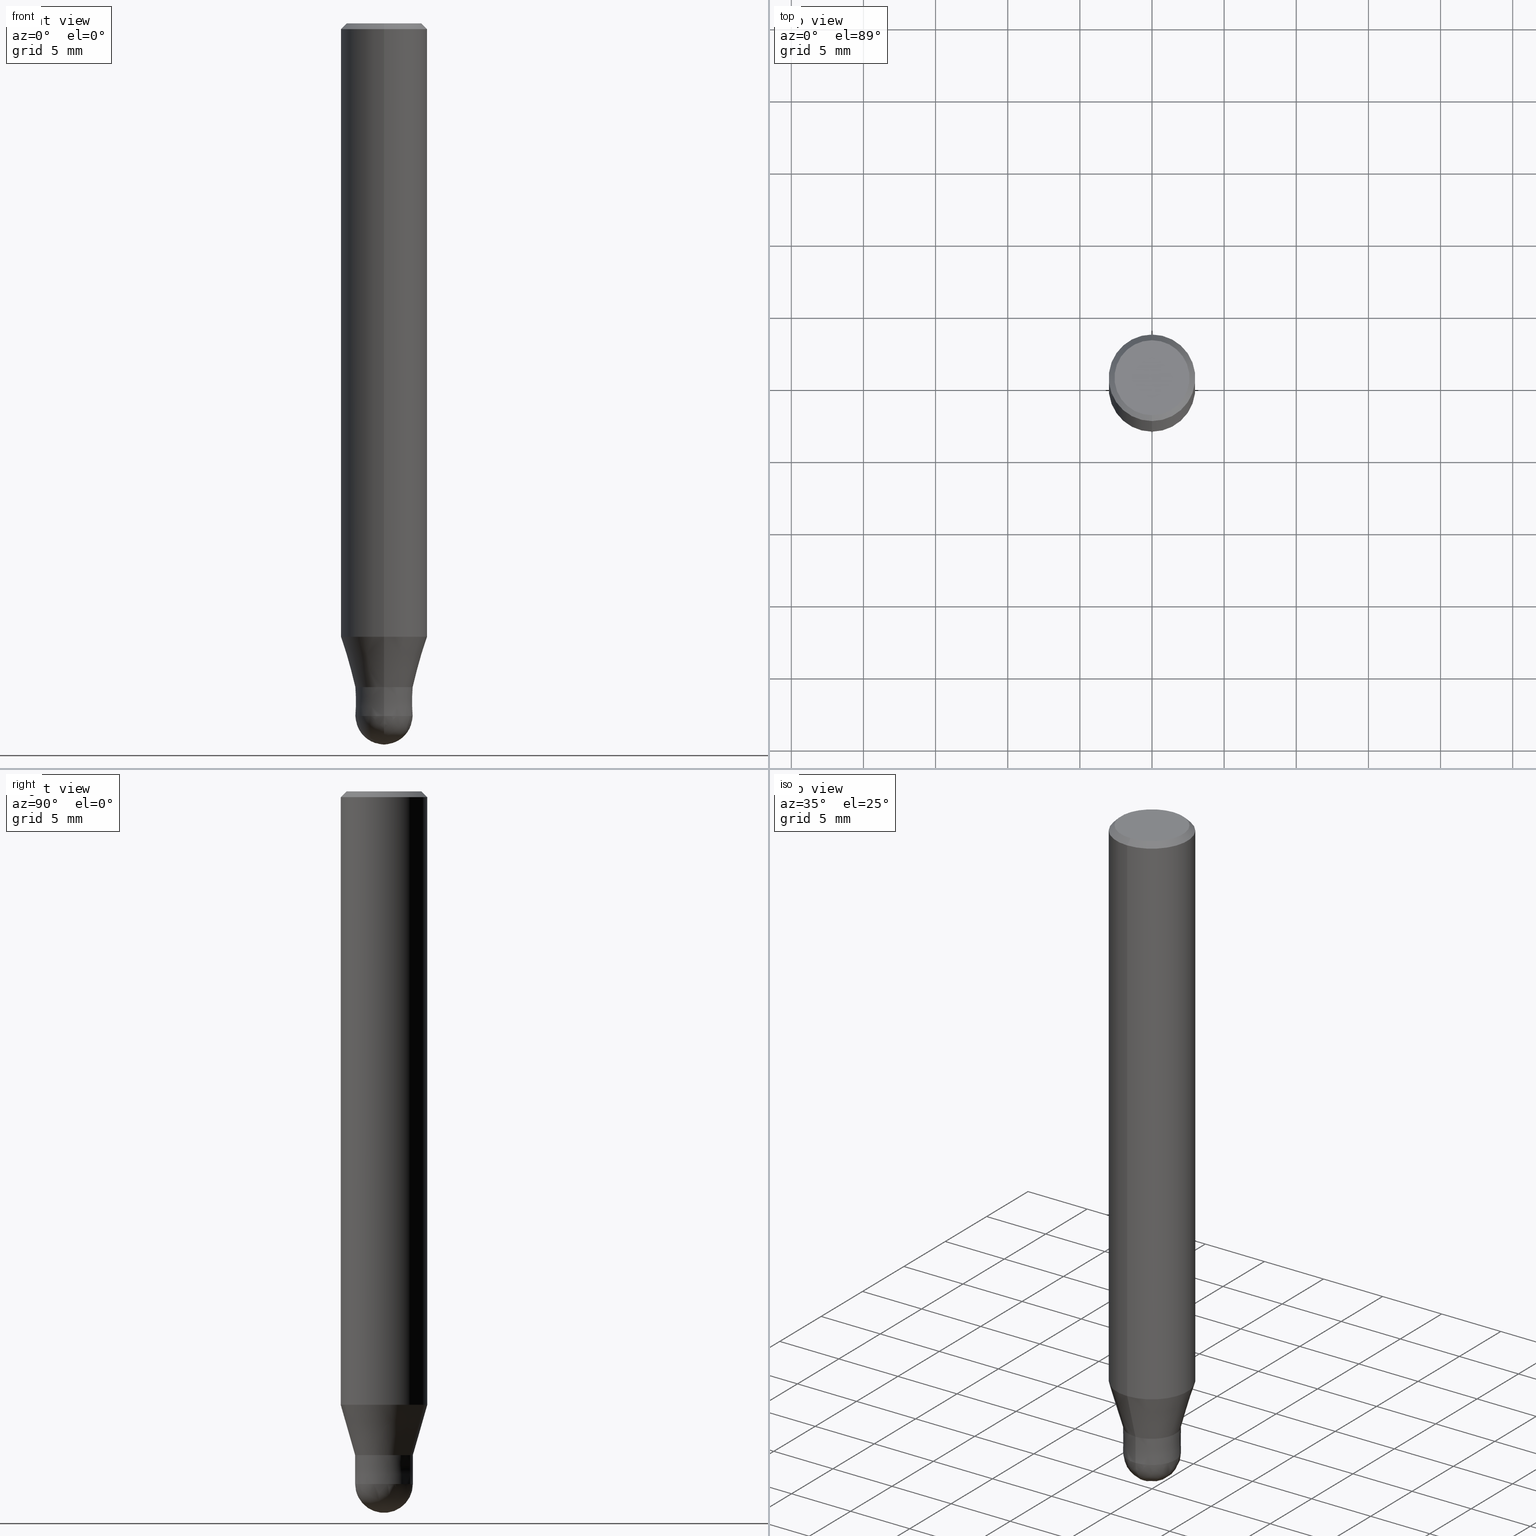
[diagram: canonical four-view strip — front | top / right | iso, engineering-drawing reading convention]
A machine part, canonical four-view strip (front | top / right | iso — engineering-drawing reading convention). The complete STEP part file that produces these views, byte-faithful:
ISO-10303-21;
HEADER;
FILE_DESCRIPTION(('no description'),'unknown implementation level');
FILE_NAME('HSB2040-0400-Huellk.stp','  ',('CIMSOURCE GmbH'),('CADClick - KiM GmbH - www.kimweb.de'),'unknown preprocess','ACIS','unknown authorization');
FILE_SCHEMA(('automotive_design'));
ENDSEC;
DATA;
#1=MECHANICAL_DESIGN_GEOMETRIC_PRESENTATION_REPRESENTATION(' ',(#14,#15,#16,#17,#18,#19,#20,#21,#22,#23,#24,#25,#26,#27,#28,#29,#30,#31,#32,#33,#34,#35,#36,#37,#38,#39,#40,#41,#42,#43,#44,#45,#46,#47,#48,#49,#50,#51,#52,#53,#54,#55,#56,#57,#58,#59,#60,#61,#62,#63,#64,#65,#66),#10);
#2=PRODUCT_DEFINITION_CONTEXT('',#67,'design');
#3=APPLICATION_PROTOCOL_DEFINITION('INTERNATIONAL STANDARD','automotive_design',1994,#67);
#4=PRODUCT_CATEGORY_RELATIONSHIP('NONE','NONE',#68,#69);
#5=SHAPE_DEFINITION_REPRESENTATION(#70,#71);
#6=PRODUCT_DEFINITION_CONTEXT('',#72,'design');
#7=APPLICATION_PROTOCOL_DEFINITION('INTERNATIONAL STANDARD','automotive_design',1994,#72);
#8=PRODUCT_CATEGORY_RELATIONSHIP('NONE','NONE',#73,#74);
#9=SHAPE_DEFINITION_REPRESENTATION(#75,#76);
#10= (GEOMETRIC_REPRESENTATION_CONTEXT(3)GLOBAL_UNCERTAINTY_ASSIGNED_CONTEXT((#79))GLOBAL_UNIT_ASSIGNED_CONTEXT((#81,#82,#83))REPRESENTATION_CONTEXT('NONE','WORKSPACE'));
#14=STYLED_ITEM('',(#85),#86);
#15=STYLED_ITEM('',(#87),#88);
#16=STYLED_ITEM('',(#89),#90);
#17=STYLED_ITEM('',(#91),#92);
#18=STYLED_ITEM('',(#93),#94);
#19=STYLED_ITEM('',(#95),#96);
#20=STYLED_ITEM('',(#97),#98);
#21=STYLED_ITEM('',(#99),#100);
#22=STYLED_ITEM('',(#101),#102);
#23=STYLED_ITEM('',(#103),#104);
#24=STYLED_ITEM('',(#105),#106);
#25=STYLED_ITEM('',(#107),#108);
#26=STYLED_ITEM('',(#109),#110);
#27=STYLED_ITEM('',(#111),#112);
#28=STYLED_ITEM('',(#113),#114);
#29=STYLED_ITEM('',(#115),#116);
#30=STYLED_ITEM('',(#117),#118);
#31=STYLED_ITEM('',(#119),#120);
#32=STYLED_ITEM('',(#121),#122);
#33=STYLED_ITEM('',(#123),#124);
#34=STYLED_ITEM('',(#125),#126);
#35=STYLED_ITEM('',(#127),#128);
#36=STYLED_ITEM('',(#129),#130);
#37=STYLED_ITEM('',(#131),#132);
#38=STYLED_ITEM('',(#133),#134);
#39=STYLED_ITEM('',(#135),#136);
#40=STYLED_ITEM('',(#137),#138);
#41=STYLED_ITEM('',(#139),#140);
#42=STYLED_ITEM('',(#141),#142);
#43=STYLED_ITEM('',(#143),#144);
#44=STYLED_ITEM('',(#145),#146);
#45=STYLED_ITEM('',(#147),#148);
#46=STYLED_ITEM('',(#149),#150);
#47=STYLED_ITEM('',(#151),#152);
#48=STYLED_ITEM('',(#153),#154);
#49=STYLED_ITEM('',(#155),#156);
#50=STYLED_ITEM('',(#157),#158);
#51=STYLED_ITEM('',(#159),#160);
#52=STYLED_ITEM('',(#161),#162);
#53=STYLED_ITEM('',(#163),#164);
#54=STYLED_ITEM('',(#165),#166);
#55=STYLED_ITEM('',(#167),#168);
#56=STYLED_ITEM('',(#169),#170);
#57=STYLED_ITEM('',(#171),#172);
#58=STYLED_ITEM('',(#173),#174);
#59=STYLED_ITEM('',(#175),#176);
#60=STYLED_ITEM('',(#177),#178);
#61=STYLED_ITEM('',(#179),#180);
#62=STYLED_ITEM('',(#181),#182);
#63=STYLED_ITEM('',(#183),#184);
#64=STYLED_ITEM('',(#185),#186);
#65=STYLED_ITEM('',(#187),#188);
#66=STYLED_ITEM('',(#189),#190);
#67=APPLICATION_CONTEXT(' ');
#68=PRODUCT_CATEGORY('part','NONE');
#69=PRODUCT_RELATED_PRODUCT_CATEGORY('detail',' ',(#191));
#70=PRODUCT_DEFINITION_SHAPE('NONE','NONE',#192);
#71=ADVANCED_BREP_SHAPE_REPRESENTATION('1',(#148,#193),#10);
#72=APPLICATION_CONTEXT(' ');
#73=PRODUCT_CATEGORY('part','NONE');
#74=PRODUCT_RELATED_PRODUCT_CATEGORY('detail',' ',(#194));
#75=PRODUCT_DEFINITION_SHAPE('NONE','NONE',#195);
#76=ADVANCED_BREP_SHAPE_REPRESENTATION('2',(#116,#196),#10);
#79=UNCERTAINTY_MEASURE_WITH_UNIT(LENGTH_MEASURE(1.0E-006),#81,'','');
#81= (CONVERSION_BASED_UNIT('MILLIMETRE',#199)LENGTH_UNIT()NAMED_UNIT(#202));
#82= (NAMED_UNIT(#204)PLANE_ANGLE_UNIT()SI_UNIT($,.RADIAN.));
#83= (NAMED_UNIT(#204)SOLID_ANGLE_UNIT()SI_UNIT($,.STERADIAN.));
#85=PRESENTATION_STYLE_ASSIGNMENT((#210));
#86=ADVANCED_FACE('',(#211),#212,.T.);
#87=PRESENTATION_STYLE_ASSIGNMENT((#213));
#88=EDGE_CURVE('',#130,#144,#214,.T.);
#89=PRESENTATION_STYLE_ASSIGNMENT((#215));
#90=VERTEX_POINT('',#216);
#91=PRESENTATION_STYLE_ASSIGNMENT((#217));
#92=VERTEX_POINT('',#218);
#93=PRESENTATION_STYLE_ASSIGNMENT((#219));
#94=EDGE_CURVE('',#92,#120,#220,.T.);
#95=PRESENTATION_STYLE_ASSIGNMENT((#221));
#96=EDGE_CURVE('',#106,#130,#222,.T.);
#97=PRESENTATION_STYLE_ASSIGNMENT((#223));
#98=ADVANCED_FACE('',(#224),#225,.T.);
#99=PRESENTATION_STYLE_ASSIGNMENT((#226));
#100=EDGE_CURVE('',#120,#158,#227,.T.);
#101=PRESENTATION_STYLE_ASSIGNMENT((#228));
#102=EDGE_CURVE('',#130,#106,#229,.T.);
#103=PRESENTATION_STYLE_ASSIGNMENT((#230));
#104=EDGE_CURVE('',#126,#158,#231,.T.);
#105=PRESENTATION_STYLE_ASSIGNMENT((#232));
#106=VERTEX_POINT('',#233);
#107=PRESENTATION_STYLE_ASSIGNMENT((#234));
#108=ADVANCED_FACE('',(#235),#236,.T.);
#109=PRESENTATION_STYLE_ASSIGNMENT((#237));
#110=EDGE_CURVE('',#114,#168,#238,.T.);
#111=PRESENTATION_STYLE_ASSIGNMENT((#239));
#112=EDGE_CURVE('',#138,#90,#240,.T.);
#113=PRESENTATION_STYLE_ASSIGNMENT((#241));
#114=VERTEX_POINT('',#242);
#115=PRESENTATION_STYLE_ASSIGNMENT((#243));
#116=MANIFOLD_SOLID_BREP('2',#244);
#117=PRESENTATION_STYLE_ASSIGNMENT((#245));
#118=EDGE_CURVE('',#152,#138,#246,.T.);
#119=PRESENTATION_STYLE_ASSIGNMENT((#247));
#120=VERTEX_POINT('',#248);
#121=PRESENTATION_STYLE_ASSIGNMENT((#249));
#122=ADVANCED_FACE('',(#250,#251),#252,.T.);
#123=PRESENTATION_STYLE_ASSIGNMENT((#253));
#124=EDGE_CURVE('',#136,#152,#254,.T.);
#125=PRESENTATION_STYLE_ASSIGNMENT((#255));
#126=VERTEX_POINT('',#256);
#127=PRESENTATION_STYLE_ASSIGNMENT((#257));
#128=ADVANCED_FACE('',(#258),#259,.T.);
#129=PRESENTATION_STYLE_ASSIGNMENT((#260));
#130=VERTEX_POINT('',#261);
#131=PRESENTATION_STYLE_ASSIGNMENT((#262));
#132=ADVANCED_FACE('',(#263),#264,.T.);
#133=PRESENTATION_STYLE_ASSIGNMENT((#265));
#134=ADVANCED_FACE('',(#266),#267,.T.);
#135=PRESENTATION_STYLE_ASSIGNMENT((#268));
#136=VERTEX_POINT('',#269);
#137=PRESENTATION_STYLE_ASSIGNMENT((#270));
#138=VERTEX_POINT('',#271);
#139=PRESENTATION_STYLE_ASSIGNMENT((#272));
#140=ADVANCED_FACE('',(#273),#274,.T.);
#141=PRESENTATION_STYLE_ASSIGNMENT((#275));
#142=EDGE_CURVE('',#168,#92,#276,.T.);
#143=PRESENTATION_STYLE_ASSIGNMENT((#277));
#144=VERTEX_POINT('',#278);
#145=PRESENTATION_STYLE_ASSIGNMENT((#279));
#146=EDGE_CURVE('',#144,#160,#280,.T.);
#147=PRESENTATION_STYLE_ASSIGNMENT((#281));
#148=MANIFOLD_SOLID_BREP('1',#282);
#149=PRESENTATION_STYLE_ASSIGNMENT((#283));
#150=EDGE_CURVE('',#114,#120,#284,.T.);
#151=PRESENTATION_STYLE_ASSIGNMENT((#285));
#152=VERTEX_POINT('',#286);
#153=PRESENTATION_STYLE_ASSIGNMENT((#287));
#154=EDGE_CURVE('',#152,#136,#288,.T.);
#155=PRESENTATION_STYLE_ASSIGNMENT((#289));
#156=ADVANCED_FACE('',(#290),#291,.T.);
#157=PRESENTATION_STYLE_ASSIGNMENT((#292));
#158=VERTEX_POINT('',#293);
#159=PRESENTATION_STYLE_ASSIGNMENT((#294));
#160=VERTEX_POINT('',#295);
#161=PRESENTATION_STYLE_ASSIGNMENT((#296));
#162=EDGE_CURVE('',#90,#136,#297,.T.);
#163=PRESENTATION_STYLE_ASSIGNMENT((#298));
#164=ADVANCED_FACE('',(#299),#300,.T.);
#165=PRESENTATION_STYLE_ASSIGNMENT((#301));
#166=EDGE_CURVE('',#130,#106,#302,.T.);
#167=PRESENTATION_STYLE_ASSIGNMENT((#303));
#168=VERTEX_POINT('',#304);
#169=PRESENTATION_STYLE_ASSIGNMENT((#305));
#170=EDGE_CURVE('',#90,#138,#306,.T.);
#171=PRESENTATION_STYLE_ASSIGNMENT((#307));
#172=EDGE_CURVE('',#160,#106,#308,.T.);
#173=PRESENTATION_STYLE_ASSIGNMENT((#309));
#174=ADVANCED_FACE('',(#310),#311,.T.);
#175=PRESENTATION_STYLE_ASSIGNMENT((#312));
#176=ADVANCED_FACE('',(#313),#314,.T.);
#177=PRESENTATION_STYLE_ASSIGNMENT((#315));
#178=EDGE_CURVE('',#120,#114,#316,.T.);
#179=PRESENTATION_STYLE_ASSIGNMENT((#317));
#180=EDGE_CURVE('',#126,#114,#318,.T.);
#181=PRESENTATION_STYLE_ASSIGNMENT((#319));
#182=ADVANCED_FACE('',(#320),#321,.T.);
#183=PRESENTATION_STYLE_ASSIGNMENT((#322));
#184=EDGE_CURVE('',#160,#144,#323,.T.);
#185=PRESENTATION_STYLE_ASSIGNMENT((#324));
#186=EDGE_CURVE('',#158,#126,#325,.T.);
#187=PRESENTATION_STYLE_ASSIGNMENT((#326));
#188=ADVANCED_FACE('',(#327),#328,.T.);
#189=PRESENTATION_STYLE_ASSIGNMENT((#329));
#190=EDGE_CURVE('',#92,#168,#330,.T.);
#191=PRODUCT('1','1','PART-1-DESC',(#331));
#192=PRODUCT_DEFINITION('NONE','NONE',#332,#2);
#193=AXIS2_PLACEMENT_3D('',#333,#334,#335);
#194=PRODUCT('2','2','PART-2-DESC',(#336));
#195=PRODUCT_DEFINITION('NONE','NONE',#337,#6);
#196=AXIS2_PLACEMENT_3D('',#338,#339,#340);
#199=LENGTH_MEASURE_WITH_UNIT(LENGTH_MEASURE(1.0),#341);
#202=DIMENSIONAL_EXPONENTS(1.0,0.0,0.0,0.0,0.0,0.0,0.0);
#204=DIMENSIONAL_EXPONENTS(0.0,0.0,0.0,0.0,0.0,0.0,0.0);
#210=SURFACE_STYLE_USAGE(.BOTH.,#342);
#211=FACE_OUTER_BOUND('',#343,.T.);
#212=PLANE('',#344);
#213=CURVE_STYLE('',#345,POSITIVE_LENGTH_MEASURE(1.0E-006),#346);
#214=LINE('',#347,#348);
#215=POINT_STYLE(' ',#349,POSITIVE_LENGTH_MEASURE(1.0E-006),#350);
#216=CARTESIAN_POINT('',(0.0,2.99995,-42.513));
#217=POINT_STYLE(' ',#351,POSITIVE_LENGTH_MEASURE(1.0E-006),#352);
#218=CARTESIAN_POINT('',(0.0,2.6,0.0));
#219=CURVE_STYLE('',#353,POSITIVE_LENGTH_MEASURE(1.0E-006),#354);
#220=LINE('',#355,#356);
#221=CURVE_STYLE('',#357,POSITIVE_LENGTH_MEASURE(1.0E-006),#358);
#222=CIRCLE('',#359,2.0);
#223=SURFACE_STYLE_USAGE(.BOTH.,#360);
#224=FACE_OUTER_BOUND('',#361,.T.);
#225=CONICAL_SURFACE('',#362,2.8,0.78539816339745);
#226=CURVE_STYLE('',#363,POSITIVE_LENGTH_MEASURE(1.0E-006),#364);
#227=LINE('',#365,#366);
#228=CURVE_STYLE('',#367,POSITIVE_LENGTH_MEASURE(1.0E-006),#368);
#229=CIRCLE('',#369,2.0);
#230=CURVE_STYLE('',#370,POSITIVE_LENGTH_MEASURE(1.0E-006),#371);
#231=CIRCLE('',#372,3.0);
#232=POINT_STYLE(' ',#373,POSITIVE_LENGTH_MEASURE(1.0E-006),#374);
#233=CARTESIAN_POINT('',(0.0,2.0,-48.0));
#234=SURFACE_STYLE_USAGE(.BOTH.,#375);
#235=FACE_OUTER_BOUND('',#376,.T.);
#236=PLANE('',#377);
#237=CURVE_STYLE('',#378,POSITIVE_LENGTH_MEASURE(1.0E-006),#379);
#238=LINE('',#380,#381);
#239=CURVE_STYLE('',#382,POSITIVE_LENGTH_MEASURE(1.0E-006),#383);
#240=CIRCLE('',#384,2.99995);
#241=POINT_STYLE(' ',#385,POSITIVE_LENGTH_MEASURE(1.0E-006),#386);
#242=CARTESIAN_POINT('',(3.67381906146713E-016,-3.0,-0.399999999999999));
#243=SURFACE_STYLE_USAGE(.BOTH.,#387);
#244=CLOSED_SHELL('',(#156,#164,#86,#140,#128));
#245=CURVE_STYLE('',#388,POSITIVE_LENGTH_MEASURE(1.0E-006),#389);
#246=LINE('',#390,#391);
#247=POINT_STYLE(' ',#392,POSITIVE_LENGTH_MEASURE(1.0E-006),#393);
#248=CARTESIAN_POINT('',(0.0,3.0,-0.399999999999999));
#249=SURFACE_STYLE_USAGE(.BOTH.,#394);
#250=FACE_OUTER_BOUND('',#395,.T.);
#251=FACE_BOUND('',#396,.T.);
#252=PLANE('',#397);
#253=CURVE_STYLE('',#398,POSITIVE_LENGTH_MEASURE(1.0E-006),#399);
#254=CIRCLE('',#400,1.99995);
#255=POINT_STYLE(' ',#401,POSITIVE_LENGTH_MEASURE(1.0E-006),#402);
#256=CARTESIAN_POINT('',(3.67381906146713E-016,-3.0,-42.513));
#257=SURFACE_STYLE_USAGE(.BOTH.,#403);
#258=FACE_OUTER_BOUND('',#404,.T.);
#259=SPHERICAL_SURFACE('',#405,2.0);
#260=POINT_STYLE(' ',#406,POSITIVE_LENGTH_MEASURE(1.0E-006),#407);
#261=CARTESIAN_POINT('',(2.44921270764476E-016,-2.0,-48.0));
#262=SURFACE_STYLE_USAGE(.BOTH.,#408);
#263=FACE_OUTER_BOUND('',#409,.T.);
#264=CYLINDRICAL_SURFACE('',#410,3.0);
#265=SURFACE_STYLE_USAGE(.BOTH.,#411);
#266=FACE_OUTER_BOUND('',#412,.T.);
#267=CYLINDRICAL_SURFACE('',#413,3.0);
#268=POINT_STYLE(' ',#414,POSITIVE_LENGTH_MEASURE(1.0E-006),#415);
#269=CARTESIAN_POINT('',(0.0,1.99995,-46.0));
#270=POINT_STYLE(' ',#416,POSITIVE_LENGTH_MEASURE(1.0E-006),#417);
#271=CARTESIAN_POINT('',(3.67375783114944E-016,-2.99995,-42.513));
#272=SURFACE_STYLE_USAGE(.BOTH.,#418);
#273=FACE_OUTER_BOUND('',#419,.T.);
#274=CONICAL_SURFACE('',#420,1.99995,4.99999999583278E-005);
#275=CURVE_STYLE('',#421,POSITIVE_LENGTH_MEASURE(1.0E-006),#422);
#276=CIRCLE('',#423,2.6);
#277=POINT_STYLE(' ',#424,POSITIVE_LENGTH_MEASURE(1.0E-006),#425);
#278=CARTESIAN_POINT('',(2.44909024700937E-016,-1.9999,-46.0));
#279=CURVE_STYLE('',#426,POSITIVE_LENGTH_MEASURE(1.0E-006),#427);
#280=CIRCLE('',#428,1.9999);
#281=SURFACE_STYLE_USAGE(.BOTH.,#429);
#282=CLOSED_SHELL('',(#182,#132,#98,#122,#174,#188,#134,#176,#108));
#283=CURVE_STYLE('',#430,POSITIVE_LENGTH_MEASURE(1.0E-006),#431);
#284=CIRCLE('',#432,3.0);
#285=POINT_STYLE(' ',#433,POSITIVE_LENGTH_MEASURE(1.0E-006),#434);
#286=CARTESIAN_POINT('',(2.44915147732706E-016,-1.99995,-46.0));
#287=CURVE_STYLE('',#435,POSITIVE_LENGTH_MEASURE(1.0E-006),#436);
#288=CIRCLE('',#437,1.99995);
#289=SURFACE_STYLE_USAGE(.BOTH.,#438);
#290=FACE_OUTER_BOUND('',#439,.T.);
#291=SPHERICAL_SURFACE('',#440,2.0);
#292=POINT_STYLE(' ',#441,POSITIVE_LENGTH_MEASURE(1.0E-006),#442);
#293=CARTESIAN_POINT('',(0.0,3.0,-42.513));
#294=POINT_STYLE(' ',#443,POSITIVE_LENGTH_MEASURE(1.0E-006),#444);
#295=CARTESIAN_POINT('',(0.0,1.9999,-46.0));
#296=CURVE_STYLE('',#445,POSITIVE_LENGTH_MEASURE(1.0E-006),#446);
#297=LINE('',#447,#448);
#298=SURFACE_STYLE_USAGE(.BOTH.,#449);
#299=FACE_OUTER_BOUND('',#450,.T.);
#300=CONICAL_SURFACE('',#451,1.99995,4.99999999583278E-005);
#301=CURVE_STYLE('',#452,POSITIVE_LENGTH_MEASURE(1.0E-006),#453);
#302=CIRCLE('',#454,2.0);
#303=POINT_STYLE(' ',#455,POSITIVE_LENGTH_MEASURE(1.0E-006),#456);
#304=CARTESIAN_POINT('',(3.18397651993818E-016,-2.6,0.0));
#305=CURVE_STYLE('',#457,POSITIVE_LENGTH_MEASURE(1.0E-006),#458);
#306=CIRCLE('',#459,2.99995);
#307=CURVE_STYLE('',#460,POSITIVE_LENGTH_MEASURE(1.0E-006),#461);
#308=LINE('',#462,#463);
#309=SURFACE_STYLE_USAGE(.BOTH.,#464);
#310=FACE_OUTER_BOUND('',#465,.T.);
#311=PLANE('',#466);
#312=SURFACE_STYLE_USAGE(.BOTH.,#467);
#313=FACE_OUTER_BOUND('',#468,.T.);
#314=CONICAL_SURFACE('',#469,2.49995,0.279284171542493);
#315=CURVE_STYLE('',#470,POSITIVE_LENGTH_MEASURE(1.0E-006),#471);
#316=CIRCLE('',#472,3.0);
#317=CURVE_STYLE('',#473,POSITIVE_LENGTH_MEASURE(1.0E-006),#474);
#318=LINE('',#475,#476);
#319=SURFACE_STYLE_USAGE(.BOTH.,#477);
#320=FACE_OUTER_BOUND('',#478,.T.);
#321=CONICAL_SURFACE('',#479,2.49995,0.279284171542493);
#322=CURVE_STYLE('',#480,POSITIVE_LENGTH_MEASURE(1.0E-006),#481);
#323=CIRCLE('',#482,1.9999);
#324=CURVE_STYLE('',#483,POSITIVE_LENGTH_MEASURE(1.0E-006),#484);
#325=CIRCLE('',#485,3.0);
#326=SURFACE_STYLE_USAGE(.BOTH.,#486);
#327=FACE_OUTER_BOUND('',#487,.T.);
#328=CONICAL_SURFACE('',#488,2.8,0.78539816339745);
#329=CURVE_STYLE('',#489,POSITIVE_LENGTH_MEASURE(1.0E-006),#490);
#330=CIRCLE('',#491,2.6);
#331=PRODUCT_CONTEXT('',#67,'mechanical');
#332=PRODUCT_DEFINITION_FORMATION_WITH_SPECIFIED_SOURCE(' ','NONE',#191,.NOT_KNOWN.);
#333=CARTESIAN_POINT('',(0.0,0.0,0.0));
#334=DIRECTION('',(0.0,0.0,1.0));
#335=DIRECTION('',(1.0,0.0,0.0));
#336=PRODUCT_CONTEXT('',#72,'mechanical');
#337=PRODUCT_DEFINITION_FORMATION_WITH_SPECIFIED_SOURCE(' ','NONE',#194,.NOT_KNOWN.);
#338=CARTESIAN_POINT('',(0.0,0.0,0.0));
#339=DIRECTION('',(0.0,0.0,1.0));
#340=DIRECTION('',(1.0,0.0,0.0));
#341= (NAMED_UNIT(#202)LENGTH_UNIT()SI_UNIT(.MILLI.,.METRE.));
#342=SURFACE_SIDE_STYLE('',(#493));
#343=EDGE_LOOP('',(#494,#495));
#344=AXIS2_PLACEMENT_3D('',#496,#497,#498);
#345=DRAUGHTING_PRE_DEFINED_CURVE_FONT('continuous');
#346=COLOUR_RGB('',0.800000011920929,0.800000011920929,0.800000011920929);
#347=CARTESIAN_POINT('',(2.44915147732706E-016,-1.99995,-47.0));
#348=VECTOR('',#499,1.0);
#349=PRE_DEFINED_MARKER('');
#350=COLOUR_RGB('',0.498039215803146,0.498039215803146,0.498039215803146);
#351=PRE_DEFINED_MARKER('');
#352=COLOUR_RGB('',0.498039215803146,0.498039215803146,0.498039215803146);
#353=DRAUGHTING_PRE_DEFINED_CURVE_FONT('continuous');
#354=COLOUR_RGB('',0.498039215803146,0.498039215803146,0.498039215803146);
#355=CARTESIAN_POINT('',(-3.42889779070266E-016,2.8,-0.200000000000003));
#356=VECTOR('',#500,1.0);
#357=DRAUGHTING_PRE_DEFINED_CURVE_FONT('continuous');
#358=COLOUR_RGB('',0.800000011920929,0.800000011920929,0.800000011920929);
#359=AXIS2_PLACEMENT_3D('',#501,#502,#503);
#360=SURFACE_SIDE_STYLE('',(#504));
#361=EDGE_LOOP('',(#505,#506,#507,#508));
#362=AXIS2_PLACEMENT_3D('',#509,#510,#511);
#363=DRAUGHTING_PRE_DEFINED_CURVE_FONT('continuous');
#364=COLOUR_RGB('',0.498039215803146,0.498039215803146,0.498039215803146);
#365=CARTESIAN_POINT('',(-3.67381906146713E-016,3.0,-21.4565));
#366=VECTOR('',#512,1.0);
#367=DRAUGHTING_PRE_DEFINED_CURVE_FONT('continuous');
#368=COLOUR_RGB('',0.800000011920929,0.800000011920929,0.800000011920929);
#369=AXIS2_PLACEMENT_3D('',#513,#514,#515);
#370=DRAUGHTING_PRE_DEFINED_CURVE_FONT('continuous');
#371=COLOUR_RGB('',0.498039215803146,0.498039215803146,0.498039215803146);
#372=AXIS2_PLACEMENT_3D('',#516,#517,#518);
#373=PRE_DEFINED_MARKER('');
#374=COLOUR_RGB('',0.800000011920929,0.800000011920929,0.800000011920929);
#375=SURFACE_SIDE_STYLE('',(#519));
#376=EDGE_LOOP('',(#520,#521));
#377=AXIS2_PLACEMENT_3D('',#522,#523,#524);
#378=DRAUGHTING_PRE_DEFINED_CURVE_FONT('continuous');
#379=COLOUR_RGB('',0.498039215803146,0.498039215803146,0.498039215803146);
#380=CARTESIAN_POINT('',(3.42889779070266E-016,-2.8,-0.200000000000003));
#381=VECTOR('',#525,1.0);
#382=DRAUGHTING_PRE_DEFINED_CURVE_FONT('continuous');
#383=COLOUR_RGB('',0.498039215803146,0.498039215803146,0.498039215803146);
#384=AXIS2_PLACEMENT_3D('',#526,#527,#528);
#385=PRE_DEFINED_MARKER('');
#386=COLOUR_RGB('',0.498039215803146,0.498039215803146,0.498039215803146);
#387=SURFACE_SIDE_STYLE('',(#529));
#388=DRAUGHTING_PRE_DEFINED_CURVE_FONT('continuous');
#389=COLOUR_RGB('',0.498039215803146,0.498039215803146,0.498039215803146);
#390=CARTESIAN_POINT('',(3.06145465423825E-016,-2.49995,-44.2565));
#391=VECTOR('',#530,1.0);
#392=PRE_DEFINED_MARKER('');
#393=COLOUR_RGB('',0.498039215803146,0.498039215803146,0.498039215803146);
#394=SURFACE_SIDE_STYLE('',(#531));
#395=EDGE_LOOP('',(#532,#533));
#396=EDGE_LOOP('',(#534,#535));
#397=AXIS2_PLACEMENT_3D('',#536,#537,#538);
#398=DRAUGHTING_PRE_DEFINED_CURVE_FONT('continuous');
#399=COLOUR_RGB('',0.498039215803146,0.498039215803146,0.498039215803146);
#400=AXIS2_PLACEMENT_3D('',#539,#540,#541);
#401=PRE_DEFINED_MARKER('');
#402=COLOUR_RGB('',0.498039215803146,0.498039215803146,0.498039215803146);
#403=SURFACE_SIDE_STYLE('',(#542));
#404=EDGE_LOOP('',(#543,#544));
#405=AXIS2_PLACEMENT_3D('',#545,#546,#547);
#406=PRE_DEFINED_MARKER('');
#407=COLOUR_RGB('',0.800000011920929,0.800000011920929,0.800000011920929);
#408=SURFACE_SIDE_STYLE('',(#548));
#409=EDGE_LOOP('',(#549,#550,#551,#552));
#410=AXIS2_PLACEMENT_3D('',#553,#554,#555);
#411=SURFACE_SIDE_STYLE('',(#556));
#412=EDGE_LOOP('',(#557,#558,#559,#560));
#413=AXIS2_PLACEMENT_3D('',#561,#562,#563);
#414=PRE_DEFINED_MARKER('');
#415=COLOUR_RGB('',0.498039215803146,0.498039215803146,0.498039215803146);
#416=PRE_DEFINED_MARKER('');
#417=COLOUR_RGB('',0.498039215803146,0.498039215803146,0.498039215803146);
#418=SURFACE_SIDE_STYLE('',(#564));
#419=EDGE_LOOP('',(#565,#566,#567,#568));
#420=AXIS2_PLACEMENT_3D('',#569,#570,#571);
#421=DRAUGHTING_PRE_DEFINED_CURVE_FONT('continuous');
#422=COLOUR_RGB('',0.498039215803146,0.498039215803146,0.498039215803146);
#423=AXIS2_PLACEMENT_3D('',#572,#573,#574);
#424=PRE_DEFINED_MARKER('');
#425=COLOUR_RGB('',0.800000011920929,0.800000011920929,0.800000011920929);
#426=DRAUGHTING_PRE_DEFINED_CURVE_FONT('continuous');
#427=COLOUR_RGB('',0.800000011920929,0.800000011920929,0.800000011920929);
#428=AXIS2_PLACEMENT_3D('',#575,#576,#577);
#429=SURFACE_SIDE_STYLE('',(#578));
#430=DRAUGHTING_PRE_DEFINED_CURVE_FONT('continuous');
#431=COLOUR_RGB('',0.498039215803146,0.498039215803146,0.498039215803146);
#432=AXIS2_PLACEMENT_3D('',#579,#580,#581);
#433=PRE_DEFINED_MARKER('');
#434=COLOUR_RGB('',0.498039215803146,0.498039215803146,0.498039215803146);
#435=DRAUGHTING_PRE_DEFINED_CURVE_FONT('continuous');
#436=COLOUR_RGB('',0.498039215803146,0.498039215803146,0.498039215803146);
#437=AXIS2_PLACEMENT_3D('',#582,#583,#584);
#438=SURFACE_SIDE_STYLE('',(#585));
#439=EDGE_LOOP('',(#586,#587));
#440=AXIS2_PLACEMENT_3D('',#588,#589,#590);
#441=PRE_DEFINED_MARKER('');
#442=COLOUR_RGB('',0.498039215803146,0.498039215803146,0.498039215803146);
#443=PRE_DEFINED_MARKER('');
#444=COLOUR_RGB('',0.800000011920929,0.800000011920929,0.800000011920929);
#445=DRAUGHTING_PRE_DEFINED_CURVE_FONT('continuous');
#446=COLOUR_RGB('',0.498039215803146,0.498039215803146,0.498039215803146);
#447=CARTESIAN_POINT('',(-3.06145465423825E-016,2.49995,-44.2565));
#448=VECTOR('',#591,1.0);
#449=SURFACE_SIDE_STYLE('',(#592));
#450=EDGE_LOOP('',(#593,#594,#595,#596));
#451=AXIS2_PLACEMENT_3D('',#597,#598,#599);
#452=DRAUGHTING_PRE_DEFINED_CURVE_FONT('continuous');
#453=COLOUR_RGB('',0.800000011920929,0.800000011920929,0.800000011920929);
#454=AXIS2_PLACEMENT_3D('',#600,#601,#602);
#455=PRE_DEFINED_MARKER('');
#456=COLOUR_RGB('',0.498039215803146,0.498039215803146,0.498039215803146);
#457=DRAUGHTING_PRE_DEFINED_CURVE_FONT('continuous');
#458=COLOUR_RGB('',0.498039215803146,0.498039215803146,0.498039215803146);
#459=AXIS2_PLACEMENT_3D('',#603,#604,#605);
#460=DRAUGHTING_PRE_DEFINED_CURVE_FONT('continuous');
#461=COLOUR_RGB('',0.800000011920929,0.800000011920929,0.800000011920929);
#462=CARTESIAN_POINT('',(-2.44915147732707E-016,1.99995,-47.0));
#463=VECTOR('',#606,1.0);
#464=SURFACE_SIDE_STYLE('',(#607));
#465=EDGE_LOOP('',(#608,#609));
#466=AXIS2_PLACEMENT_3D('',#610,#611,#612);
#467=SURFACE_SIDE_STYLE('',(#613));
#468=EDGE_LOOP('',(#614,#615,#616,#617));
#469=AXIS2_PLACEMENT_3D('',#618,#619,#620);
#470=DRAUGHTING_PRE_DEFINED_CURVE_FONT('continuous');
#471=COLOUR_RGB('',0.498039215803146,0.498039215803146,0.498039215803146);
#472=AXIS2_PLACEMENT_3D('',#621,#622,#623);
#473=DRAUGHTING_PRE_DEFINED_CURVE_FONT('continuous');
#474=COLOUR_RGB('',0.498039215803146,0.498039215803146,0.498039215803146);
#475=CARTESIAN_POINT('',(3.67381906146713E-016,-3.0,-21.4565));
#476=VECTOR('',#624,1.0);
#477=SURFACE_SIDE_STYLE('',(#625));
#478=EDGE_LOOP('',(#626,#627,#628,#629));
#479=AXIS2_PLACEMENT_3D('',#630,#631,#632);
#480=DRAUGHTING_PRE_DEFINED_CURVE_FONT('continuous');
#481=COLOUR_RGB('',0.800000011920929,0.800000011920929,0.800000011920929);
#482=AXIS2_PLACEMENT_3D('',#633,#634,#635);
#483=DRAUGHTING_PRE_DEFINED_CURVE_FONT('continuous');
#484=COLOUR_RGB('',0.498039215803146,0.498039215803146,0.498039215803146);
#485=AXIS2_PLACEMENT_3D('',#636,#637,#638);
#486=SURFACE_SIDE_STYLE('',(#639));
#487=EDGE_LOOP('',(#640,#641,#642,#643));
#488=AXIS2_PLACEMENT_3D('',#644,#645,#646);
#489=DRAUGHTING_PRE_DEFINED_CURVE_FONT('continuous');
#490=COLOUR_RGB('',0.498039215803146,0.498039215803146,0.498039215803146);
#491=AXIS2_PLACEMENT_3D('',#647,#648,#649);
#493=SURFACE_STYLE_FILL_AREA(#650);
#494=ORIENTED_EDGE('',*,*,#184,.F.);
#495=ORIENTED_EDGE('',*,*,#146,.F.);
#496=CARTESIAN_POINT('',(0.0,0.99995,-46.0));
#497=DIRECTION('',(-0.0,0.0,1.0));
#498=DIRECTION('',(0.0,-1.0,0.0));
#499=DIRECTION('',(-6.12303176145742E-021,4.99999999374945E-005,0.99999999875));
#500=DIRECTION('',(-8.65927457071937E-017,0.707106781186549,-0.707106781186546));
#501=CARTESIAN_POINT('',(0.0,0.0,-48.0));
#502=DIRECTION('',(0.0,0.0,-1.0));
#503=DIRECTION('',(0.0,1.0,0.0));
#504=SURFACE_STYLE_FILL_AREA(#651);
#505=ORIENTED_EDGE('',*,*,#94,.F.);
#506=ORIENTED_EDGE('',*,*,#190,.T.);
#507=ORIENTED_EDGE('',*,*,#110,.F.);
#508=ORIENTED_EDGE('',*,*,#178,.F.);
#509=CARTESIAN_POINT('',(0.0,0.0,-0.200000000000003));
#510=DIRECTION('',(0.0,-0.0,-1.0));
#511=DIRECTION('',(0.0,1.0,0.0));
#512=DIRECTION('',(0.0,0.0,-1.0));
#513=CARTESIAN_POINT('',(0.0,0.0,-48.0));
#514=DIRECTION('',(0.0,0.0,-1.0));
#515=DIRECTION('',(0.0,1.0,0.0));
#516=CARTESIAN_POINT('',(0.0,0.0,-42.513));
#517=DIRECTION('',(0.0,0.0,-1.0));
#518=DIRECTION('',(0.0,1.0,0.0));
#519=SURFACE_STYLE_FILL_AREA(#652);
#520=ORIENTED_EDGE('',*,*,#124,.T.);
#521=ORIENTED_EDGE('',*,*,#154,.T.);
#522=CARTESIAN_POINT('',(0.0,0.999975,-46.0));
#523=DIRECTION('',(0.0,0.0,-1.0));
#524=DIRECTION('',(0.0,1.0,0.0));
#525=DIRECTION('',(-8.65927457071937E-017,0.707106781186549,0.707106781186546));
#526=CARTESIAN_POINT('',(0.0,0.0,-42.513));
#527=DIRECTION('',(0.0,0.0,-1.0));
#528=DIRECTION('',(0.0,1.0,0.0));
#529=SURFACE_STYLE_FILL_AREA(#653);
#530=DIRECTION('',(3.3758432755158E-017,-0.275667626987133,0.961253015304131));
#531=SURFACE_STYLE_FILL_AREA(#654);
#532=ORIENTED_EDGE('',*,*,#186,.T.);
#533=ORIENTED_EDGE('',*,*,#104,.T.);
#534=ORIENTED_EDGE('',*,*,#170,.F.);
#535=ORIENTED_EDGE('',*,*,#112,.F.);
#536=CARTESIAN_POINT('',(0.0,1.5,-42.513));
#537=DIRECTION('',(0.0,0.0,-1.0));
#538=DIRECTION('',(0.0,1.0,0.0));
#539=CARTESIAN_POINT('',(0.0,0.0,-46.0));
#540=DIRECTION('',(0.0,0.0,-1.0));
#541=DIRECTION('',(0.0,1.0,0.0));
#542=SURFACE_STYLE_FILL_AREA(#655);
#543=ORIENTED_EDGE('',*,*,#166,.T.);
#544=ORIENTED_EDGE('',*,*,#96,.T.);
#545=CARTESIAN_POINT('',(0.0,0.0,-48.0));
#546=DIRECTION('',(0.0,1.0,0.0));
#547=DIRECTION('',(0.0,0.0,-1.0));
#548=SURFACE_STYLE_FILL_AREA(#656);
#549=ORIENTED_EDGE('',*,*,#100,.F.);
#550=ORIENTED_EDGE('',*,*,#178,.T.);
#551=ORIENTED_EDGE('',*,*,#180,.F.);
#552=ORIENTED_EDGE('',*,*,#186,.F.);
#553=CARTESIAN_POINT('',(0.0,0.0,-21.4565));
#554=DIRECTION('',(-0.0,-0.0,1.0));
#555=DIRECTION('',(0.0,1.0,0.0));
#556=SURFACE_STYLE_FILL_AREA(#657);
#557=ORIENTED_EDGE('',*,*,#100,.T.);
#558=ORIENTED_EDGE('',*,*,#104,.F.);
#559=ORIENTED_EDGE('',*,*,#180,.T.);
#560=ORIENTED_EDGE('',*,*,#150,.T.);
#561=CARTESIAN_POINT('',(0.0,0.0,-21.4565));
#562=DIRECTION('',(-0.0,-0.0,1.0));
#563=DIRECTION('',(0.0,1.0,0.0));
#564=SURFACE_STYLE_FILL_AREA(#658);
#565=ORIENTED_EDGE('',*,*,#172,.T.);
#566=ORIENTED_EDGE('',*,*,#102,.F.);
#567=ORIENTED_EDGE('',*,*,#88,.T.);
#568=ORIENTED_EDGE('',*,*,#146,.T.);
#569=CARTESIAN_POINT('',(0.0,0.0,-47.0));
#570=DIRECTION('',(0.0,-0.0,-1.0));
#571=DIRECTION('',(0.0,1.0,0.0));
#572=CARTESIAN_POINT('',(0.0,0.0,0.0));
#573=DIRECTION('',(0.0,0.0,-1.0));
#574=DIRECTION('',(0.0,1.0,0.0));
#575=CARTESIAN_POINT('',(0.0,0.0,-46.0));
#576=DIRECTION('',(0.0,0.0,-1.0));
#577=DIRECTION('',(0.0,1.0,0.0));
#578=SURFACE_STYLE_FILL_AREA(#659);
#579=CARTESIAN_POINT('',(0.0,0.0,-0.399999999999999));
#580=DIRECTION('',(0.0,0.0,-1.0));
#581=DIRECTION('',(0.0,1.0,0.0));
#582=CARTESIAN_POINT('',(0.0,0.0,-46.0));
#583=DIRECTION('',(0.0,0.0,-1.0));
#584=DIRECTION('',(0.0,1.0,0.0));
#585=SURFACE_STYLE_FILL_AREA(#660);
#586=ORIENTED_EDGE('',*,*,#166,.F.);
#587=ORIENTED_EDGE('',*,*,#102,.T.);
#588=CARTESIAN_POINT('',(0.0,0.0,-48.0));
#589=DIRECTION('',(0.0,1.0,0.0));
#590=DIRECTION('',(0.0,0.0,-1.0));
#591=DIRECTION('',(3.3758432755158E-017,-0.275667626987133,-0.961253015304131));
#592=SURFACE_STYLE_FILL_AREA(#661);
#593=ORIENTED_EDGE('',*,*,#172,.F.);
#594=ORIENTED_EDGE('',*,*,#184,.T.);
#595=ORIENTED_EDGE('',*,*,#88,.F.);
#596=ORIENTED_EDGE('',*,*,#96,.F.);
#597=CARTESIAN_POINT('',(0.0,0.0,-47.0));
#598=DIRECTION('',(0.0,-0.0,-1.0));
#599=DIRECTION('',(0.0,1.0,0.0));
#600=CARTESIAN_POINT('',(0.0,0.0,-48.0));
#601=DIRECTION('',(1.0,0.0,1.22460635382238E-016));
#602=DIRECTION('',(-1.22460635382238E-016,0.0,1.0));
#603=CARTESIAN_POINT('',(0.0,0.0,-42.513));
#604=DIRECTION('',(0.0,0.0,-1.0));
#605=DIRECTION('',(0.0,1.0,0.0));
#606=DIRECTION('',(-6.12303176145743E-021,4.99999999374945E-005,-0.99999999875));
#607=SURFACE_STYLE_FILL_AREA(#662);
#608=ORIENTED_EDGE('',*,*,#190,.F.);
#609=ORIENTED_EDGE('',*,*,#142,.F.);
#610=CARTESIAN_POINT('',(0.0,1.3,0.0));
#611=DIRECTION('',(-0.0,0.0,1.0));
#612=DIRECTION('',(0.0,-1.0,0.0));
#613=SURFACE_STYLE_FILL_AREA(#663);
#614=ORIENTED_EDGE('',*,*,#162,.T.);
#615=ORIENTED_EDGE('',*,*,#154,.F.);
#616=ORIENTED_EDGE('',*,*,#118,.T.);
#617=ORIENTED_EDGE('',*,*,#112,.T.);
#618=CARTESIAN_POINT('',(0.0,0.0,-44.2565));
#619=DIRECTION('',(-0.0,-0.0,1.0));
#620=DIRECTION('',(0.0,1.0,0.0));
#621=CARTESIAN_POINT('',(0.0,0.0,-0.399999999999999));
#622=DIRECTION('',(0.0,0.0,-1.0));
#623=DIRECTION('',(0.0,1.0,0.0));
#624=DIRECTION('',(-0.0,-0.0,1.0));
#625=SURFACE_STYLE_FILL_AREA(#664);
#626=ORIENTED_EDGE('',*,*,#162,.F.);
#627=ORIENTED_EDGE('',*,*,#170,.T.);
#628=ORIENTED_EDGE('',*,*,#118,.F.);
#629=ORIENTED_EDGE('',*,*,#124,.F.);
#630=CARTESIAN_POINT('',(0.0,0.0,-44.2565));
#631=DIRECTION('',(-0.0,-0.0,1.0));
#632=DIRECTION('',(0.0,1.0,0.0));
#633=CARTESIAN_POINT('',(0.0,0.0,-46.0));
#634=DIRECTION('',(0.0,0.0,-1.0));
#635=DIRECTION('',(0.0,1.0,0.0));
#636=CARTESIAN_POINT('',(0.0,0.0,-42.513));
#637=DIRECTION('',(0.0,0.0,-1.0));
#638=DIRECTION('',(0.0,1.0,0.0));
#639=SURFACE_STYLE_FILL_AREA(#665);
#640=ORIENTED_EDGE('',*,*,#94,.T.);
#641=ORIENTED_EDGE('',*,*,#150,.F.);
#642=ORIENTED_EDGE('',*,*,#110,.T.);
#643=ORIENTED_EDGE('',*,*,#142,.T.);
#644=CARTESIAN_POINT('',(0.0,0.0,-0.200000000000003));
#645=DIRECTION('',(0.0,-0.0,-1.0));
#646=DIRECTION('',(0.0,1.0,0.0));
#647=CARTESIAN_POINT('',(0.0,0.0,0.0));
#648=DIRECTION('',(0.0,0.0,-1.0));
#649=DIRECTION('',(0.0,1.0,0.0));
#650=FILL_AREA_STYLE('',(#666));
#651=FILL_AREA_STYLE('',(#667));
#652=FILL_AREA_STYLE('',(#668));
#653=FILL_AREA_STYLE('',(#669));
#654=FILL_AREA_STYLE('',(#670));
#655=FILL_AREA_STYLE('',(#671));
#656=FILL_AREA_STYLE('',(#672));
#657=FILL_AREA_STYLE('',(#673));
#658=FILL_AREA_STYLE('',(#674));
#659=FILL_AREA_STYLE('',(#675));
#660=FILL_AREA_STYLE('',(#676));
#661=FILL_AREA_STYLE('',(#677));
#662=FILL_AREA_STYLE('',(#678));
#663=FILL_AREA_STYLE('',(#679));
#664=FILL_AREA_STYLE('',(#680));
#665=FILL_AREA_STYLE('',(#681));
#666=FILL_AREA_STYLE_COLOUR('',#682);
#667=FILL_AREA_STYLE_COLOUR('',#683);
#668=FILL_AREA_STYLE_COLOUR('',#684);
#669=FILL_AREA_STYLE_COLOUR('',#685);
#670=FILL_AREA_STYLE_COLOUR('',#686);
#671=FILL_AREA_STYLE_COLOUR('',#687);
#672=FILL_AREA_STYLE_COLOUR('',#688);
#673=FILL_AREA_STYLE_COLOUR('',#689);
#674=FILL_AREA_STYLE_COLOUR('',#690);
#675=FILL_AREA_STYLE_COLOUR('',#691);
#676=FILL_AREA_STYLE_COLOUR('',#692);
#677=FILL_AREA_STYLE_COLOUR('',#693);
#678=FILL_AREA_STYLE_COLOUR('',#694);
#679=FILL_AREA_STYLE_COLOUR('',#695);
#680=FILL_AREA_STYLE_COLOUR('',#696);
#681=FILL_AREA_STYLE_COLOUR('',#697);
#682=COLOUR_RGB('',0.800000011920929,0.800000011920929,0.800000011920929);
#683=COLOUR_RGB('',0.498039215803146,0.498039215803146,0.498039215803146);
#684=COLOUR_RGB('',0.498039215803146,0.498039215803146,0.498039215803146);
#685=COLOUR_RGB('',0.800000011920929,0.800000011920929,0.800000011920929);
#686=COLOUR_RGB('',0.498039215803146,0.498039215803146,0.498039215803146);
#687=COLOUR_RGB('',0.800000011920929,0.800000011920929,0.800000011920929);
#688=COLOUR_RGB('',0.498039215803146,0.498039215803146,0.498039215803146);
#689=COLOUR_RGB('',0.498039215803146,0.498039215803146,0.498039215803146);
#690=COLOUR_RGB('',0.800000011920929,0.800000011920929,0.800000011920929);
#691=COLOUR_RGB('',0.498039215803146,0.498039215803146,0.498039215803146);
#692=COLOUR_RGB('',0.800000011920929,0.800000011920929,0.800000011920929);
#693=COLOUR_RGB('',0.800000011920929,0.800000011920929,0.800000011920929);
#694=COLOUR_RGB('',0.498039215803146,0.498039215803146,0.498039215803146);
#695=COLOUR_RGB('',0.498039215803146,0.498039215803146,0.498039215803146);
#696=COLOUR_RGB('',0.498039215803146,0.498039215803146,0.498039215803146);
#697=COLOUR_RGB('',0.498039215803146,0.498039215803146,0.498039215803146);
#698=AXIS2_PLACEMENT_3D('PCS',#699,#700,#701);
#699=CARTESIAN_POINT('',(0.0,0.0,0.0));
#700=DIRECTION('',(0.0,0.0,1.0));
#701=DIRECTION('',(1.0,0.0,0.0));
#702=AXIS2_PLACEMENT_3D('CIP',#703,#704,#705);
#703=CARTESIAN_POINT('',(0.0,0.0,-50.0));
#704=DIRECTION('',(0.0,0.0,1.0));
#705=DIRECTION('',(1.0,0.0,0.0));
#706=AXIS2_PLACEMENT_3D('CRP',#707,#708,#709);
#707=CARTESIAN_POINT('',(-2.0,0.0,-50.0));
#708=DIRECTION('',(0.0,0.0,1.0));
#709=DIRECTION('',(1.0,0.0,0.0));
#710=AXIS2_PLACEMENT_3D('MCS',#711,#712,#713);
#711=CARTESIAN_POINT('',(0.0,0.0,-42.513));
#712=DIRECTION('',(0.0,0.0,1.0));
#713=DIRECTION('',(1.0,0.0,0.0));
#714=CONSTRUCTIVE_GEOMETRY_REPRESENTATION_RELATIONSHIP('coordinate systems',$,#71,#715);
#715=CONSTRUCTIVE_GEOMETRY_REPRESENTATION('coordinate systems',(#698,#702,#706,#710),#10);
ENDSEC;
END-ISO-10303-21;
